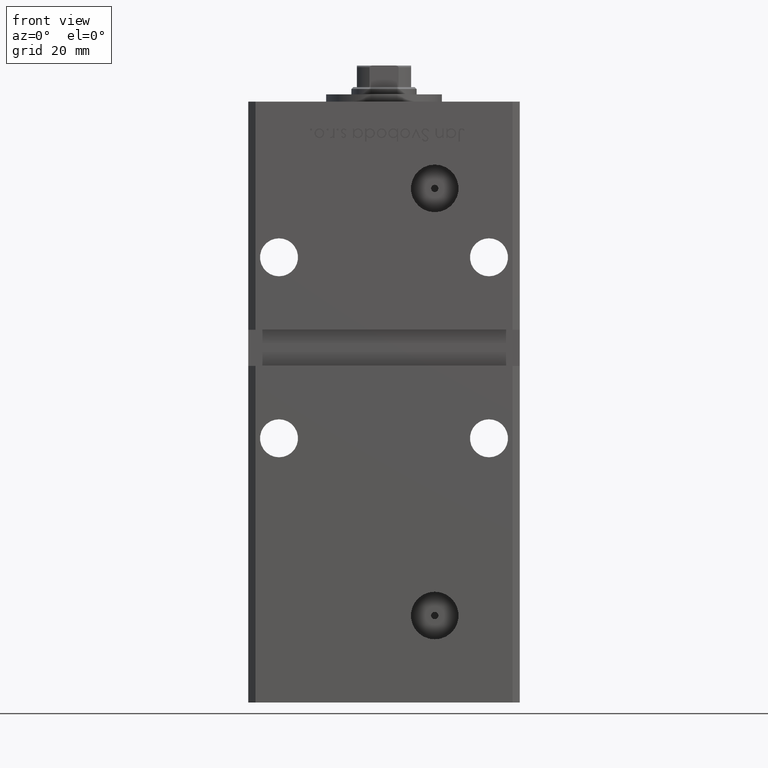
[diagram: clean part render]
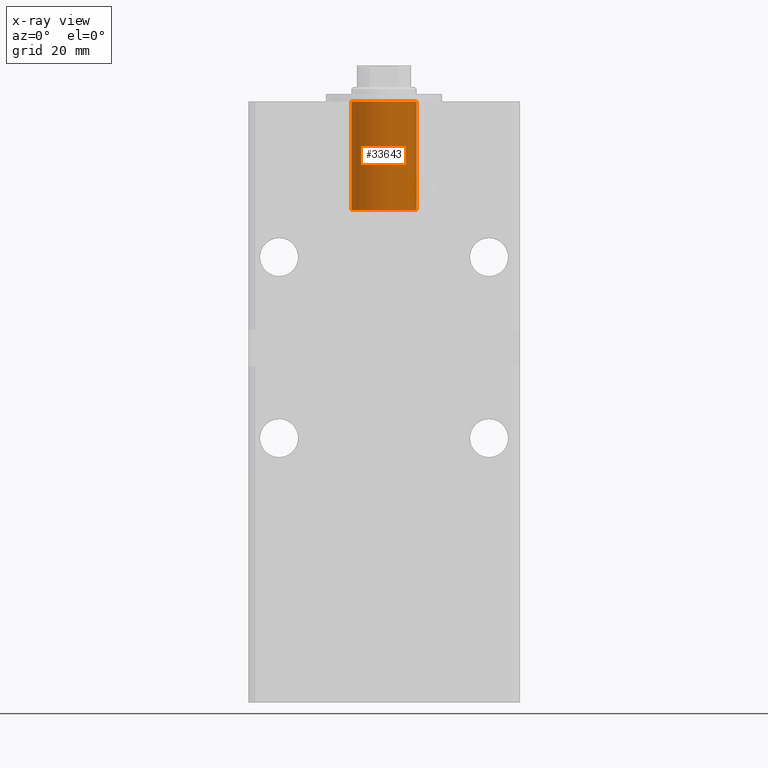
[diagram: x-ray — body ghosted, one internal face saturated and labeled with its STEP entity id]
A machine part, front view, then the same camera in x-ray: the body is ghosted and one INTERNAL B-rep face — a face not visible from any outside direction — is saturated and labeled: STEP entity #33643.
In plain terms, the highlighted cylindrical surface (edge-blend (fillet) strip) has radius 9 mm, axis along (0, 0, 1).
Its self-contained STEP definition (entity closure, byte-faithful):
#1603 = CYLINDRICAL_SURFACE ( 'NONE', #25210, 8.999999999999996447 ) ;
#1999 = VECTOR ( 'NONE', #36558, 1000.000000000000000 ) ;
#3628 = CARTESIAN_POINT ( 'NONE',  ( 8.999999999999996447, -6.938893903907228378E-15, -30.00000000000000000 ) ) ;
#7668 = CARTESIAN_POINT ( 'NONE',  ( -8.999999999999996447, -5.836711784674611255E-15, -30.00000000000000000 ) ) ;
#7798 = LINE ( 'NONE', #20169, #1999 ) ;
#9433 = DIRECTION ( 'NONE',  ( 1.000000000000000000, 0.000000000000000000, 0.000000000000000000 ) ) ;
#9960 = DIRECTION ( 'NONE',  ( -0.000000000000000000, -0.000000000000000000, 1.000000000000000000 ) ) ;
#11391 = ORIENTED_EDGE ( 'NONE', *, *, #53224, .T. ) ;
#11704 = CARTESIAN_POINT ( 'NONE',  ( 0.000000000000000000, -6.938893903907228378E-15, -30.00000000000000000 ) ) ;
#12766 = DIRECTION ( 'NONE',  ( 1.000000000000000000, 0.000000000000000000, 0.000000000000000000 ) ) ;
#15211 = DIRECTION ( 'NONE',  ( -0.000000000000000000, -0.000000000000000000, 1.000000000000000000 ) ) ;
#16857 = VECTOR ( 'NONE', #15211, 1000.000000000000000 ) ;
#18092 = CARTESIAN_POINT ( 'NONE',  ( 8.999999999999996447, -6.938893903907228378E-15, -30.00000000000000000 ) ) ;
#19487 = CARTESIAN_POINT ( 'NONE',  ( 0.000000000000000000, -6.938893903907228378E-15, 0.000000000000000000 ) ) ;
#19824 = ORIENTED_EDGE ( 'NONE', *, *, #34256, .T. ) ;
#20169 = CARTESIAN_POINT ( 'NONE',  ( -8.999999999999996447, -5.836711784674611255E-15, -30.00000000000000000 ) ) ;
#20476 = EDGE_LOOP ( 'NONE', ( #44812, #11391, #19824, #45654 ) ) ;
#21800 = AXIS2_PLACEMENT_3D ( 'NONE', #19487, #48238, #39907 ) ;
#22633 = CIRCLE ( 'NONE', #21800, 8.999999999999996447 ) ;
#25210 = AXIS2_PLACEMENT_3D ( 'NONE', #50284, #9960, #9433 ) ;
#28090 = DIRECTION ( 'NONE',  ( 0.000000000000000000, 0.000000000000000000, 1.000000000000000000 ) ) ;
#28098 = LINE ( 'NONE', #3628, #16857 ) ;
#29429 = VERTEX_POINT ( 'NONE', #49202 ) ;
#30371 = CIRCLE ( 'NONE', #45825, 8.999999999999996447 ) ;
#30601 = EDGE_CURVE ( 'NONE', #37765, #41462, #30371, .T. ) ;
#33643 = ADVANCED_FACE ( 'NONE', ( #46767 ), #1603, .F. ) ;
#33966 = CARTESIAN_POINT ( 'NONE',  ( 8.999999999999996447, -6.938893903907228378E-15, 0.000000000000000000 ) ) ;
#34256 = EDGE_CURVE ( 'NONE', #29429, #36849, #22633, .T. ) ;
#36558 = DIRECTION ( 'NONE',  ( -0.000000000000000000, -0.000000000000000000, 1.000000000000000000 ) ) ;
#36849 = VERTEX_POINT ( 'NONE', #33966 ) ;
#37765 = VERTEX_POINT ( 'NONE', #7668 ) ;
#39907 = DIRECTION ( 'NONE',  ( 1.000000000000000000, 0.000000000000000000, 0.000000000000000000 ) ) ;
#41462 = VERTEX_POINT ( 'NONE', #18092 ) ;
#43188 = EDGE_CURVE ( 'NONE', #41462, #36849, #28098, .T. ) ;
#44812 = ORIENTED_EDGE ( 'NONE', *, *, #30601, .F. ) ;
#45654 = ORIENTED_EDGE ( 'NONE', *, *, #43188, .F. ) ;
#45825 = AXIS2_PLACEMENT_3D ( 'NONE', #11704, #28090, #12766 ) ;
#46767 = FACE_OUTER_BOUND ( 'NONE', #20476, .T. ) ;
#48238 = DIRECTION ( 'NONE',  ( 0.000000000000000000, 0.000000000000000000, 1.000000000000000000 ) ) ;
#49202 = CARTESIAN_POINT ( 'NONE',  ( -8.999999999999996447, -5.836711784674611255E-15, 0.000000000000000000 ) ) ;
#50284 = CARTESIAN_POINT ( 'NONE',  ( 0.000000000000000000, -6.938893903907228378E-15, -30.00000000000000000 ) ) ;
#53224 = EDGE_CURVE ( 'NONE', #37765, #29429, #7798, .T. ) ;